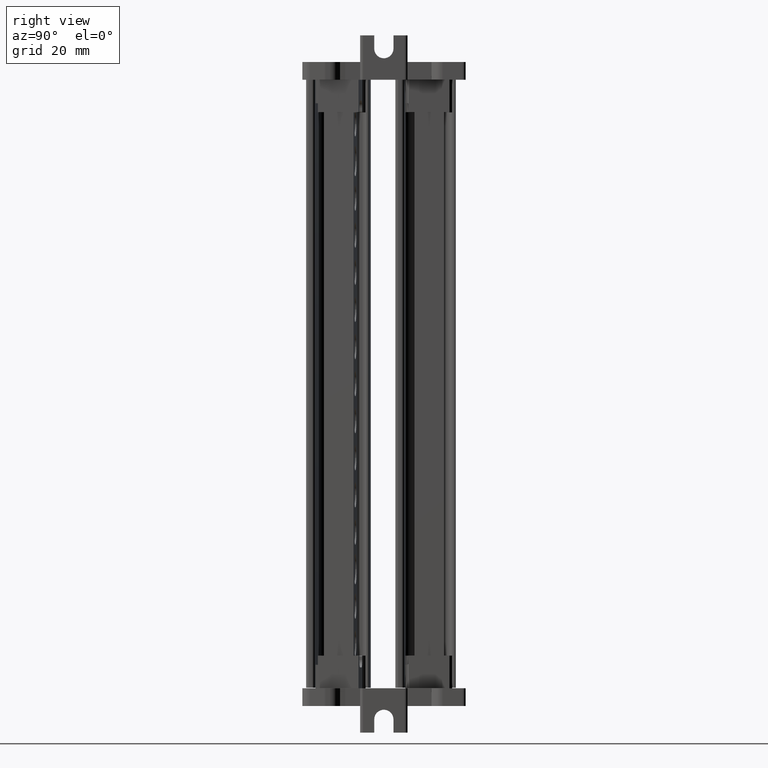
[diagram: clean part render]
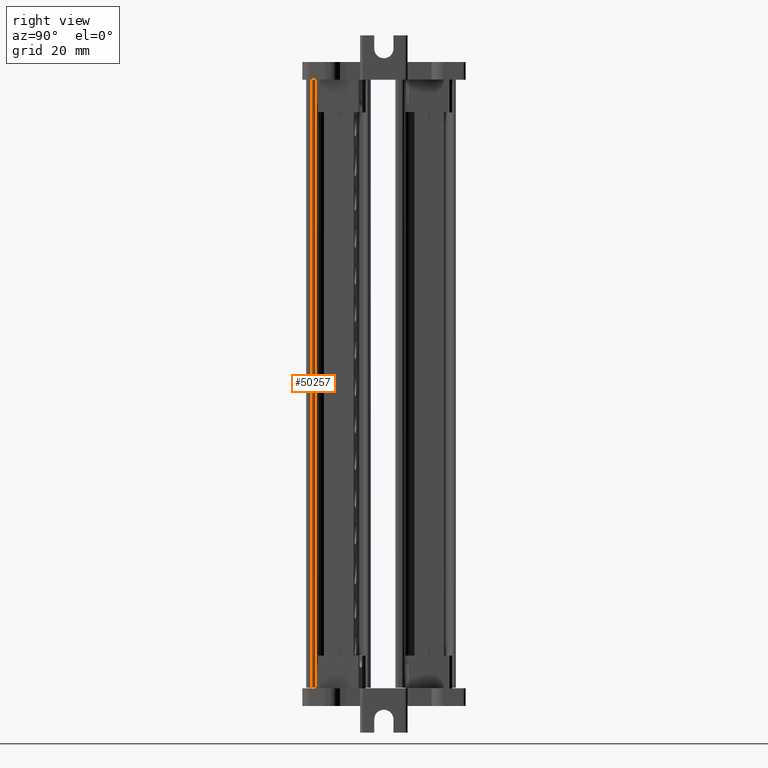
[diagram: same view with one face highlighted and labeled with its STEP entity id]
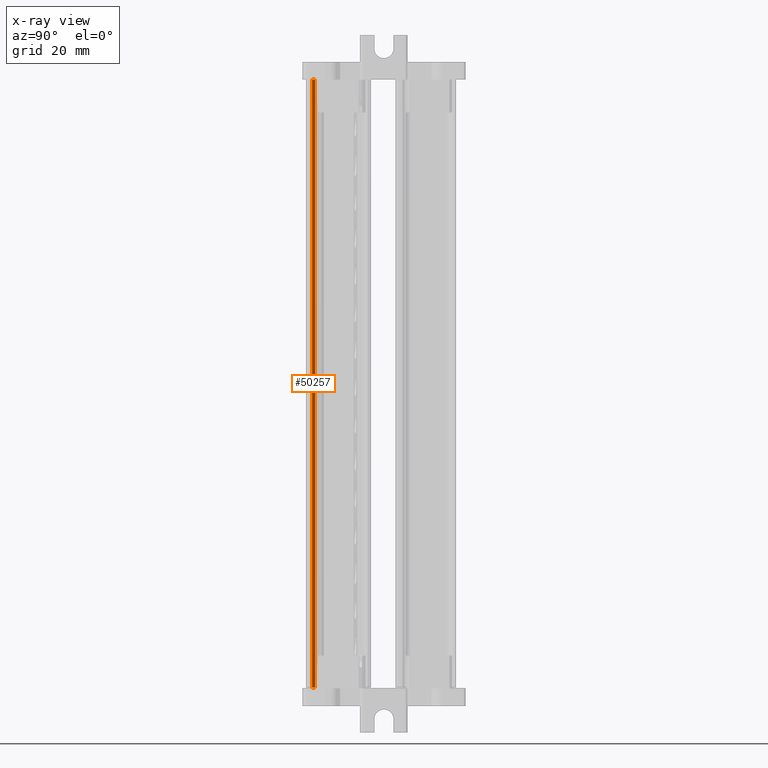
[diagram: x-ray of the same camera — body ghosted, the highlighted face saturated]
A machine part, right view. The second image highlights one B-rep face of the part: STEP entity #50257.
The next image is the same camera in x-ray: the body ghosted, the highlighted face saturated — about 0% of this face is hidden behind the body in this view.
In plain terms, the highlighted cylindrical surface (edge-blend (fillet) strip) has radius 1 mm, axis along (0, 0, -1).
Its self-contained STEP definition (entity closure, byte-faithful):
#1312 = DIRECTION ( 'NONE',  ( -1.263344702348293100E-010, -1.444603258241147500E-009, 1.000000000000000000 ) ) ;
#1327 = CARTESIAN_POINT ( 'NONE',  ( 1902.616250401497400, 759.6510122995540500, 6.170753986929261400 ) ) ;
#1351 = DIRECTION ( 'NONE',  ( 0.0000000000000000000, 1.000000000000000000, 1.444603117684016700E-009 ) ) ;
#26680 = DIRECTION ( 'NONE',  ( -1.515544296466684300E-010, -1.441952549265793800E-009, 1.000000000000000000 ) ) ;
#26728 = CARTESIAN_POINT ( 'NONE',  ( 1902.720778242178100, 760.6455341138628200, 106.6560282061103900 ) ) ;
#26740 = LINE ( 'NONE', #26728, #83209 ) ;
#26997 = DIRECTION ( 'NONE',  ( 0.0000000000000000000, 1.000000000000000000, 1.444594444066636800E-009 ) ) ;
#27062 = CARTESIAN_POINT ( 'NONE',  ( 1902.616250375617900, 759.6510120036276700, 211.0203037991499300 ) ) ;
#27065 = DIRECTION ( 'NONE',  ( 1.263344702348293100E-010, 1.444603258241147500E-009, -1.000000000000000000 ) ) ;
#31339 = FACE_OUTER_BOUND ( 'NONE', #45927, .T. ) ;
#31429 = DIRECTION ( 'NONE',  ( 0.0000000000000000000, 1.000000000000000000, 1.444608321854444600E-009 ) ) ;
#31432 = DIRECTION ( 'NONE',  ( 1.263344702348293100E-010, 1.444603258241147500E-009, -1.000000000000000000 ) ) ;
#31526 = CARTESIAN_POINT ( 'NONE',  ( 1902.616250388802700, 759.6510121543926700, 106.6560282043605700 ) ) ;
#31534 = CYLINDRICAL_SURFACE ( 'NONE', #64192, 1.000000000000000900 ) ;
#35247 = EDGE_CURVE ( 'NONE', #81180, #81186, #37258, .T. ) ;
#37254 = CARTESIAN_POINT ( 'NONE',  ( 1903.612445200531700, 759.5638577105332800, 106.6560282043605100 ) ) ;
#37255 = DIRECTION ( 'NONE',  ( 1.263344702348293100E-010, 1.444603258241147500E-009, -1.000000000000000000 ) ) ;
#37258 = LINE ( 'NONE', #37254, #57377 ) ;
#42088 = CARTESIAN_POINT ( 'NONE',  ( 1903.612445187346800, 759.5638575597685100, 211.0203037998748500 ) ) ;
#42111 = CARTESIAN_POINT ( 'NONE',  ( 1903.612445213226700, 759.5638578556945500, 6.170753986929199200 ) ) ;
#42635 = CARTESIAN_POINT ( 'NONE',  ( 1902.720778228944300, 760.6455339631031600, 211.0203038005998300 ) ) ;
#42724 = CARTESIAN_POINT ( 'NONE',  ( 1902.720778257406900, 760.6455342587579500, 6.170753986674961700 ) ) ;
#45927 = EDGE_LOOP ( 'NONE', ( #74853, #74804, #74813, #75002 ) ) ;
#50257 = ADVANCED_FACE ( 'NONE', ( #31339 ), #31534, .T. ) ;
#57377 = VECTOR ( 'NONE', #37255, 1000.000000000000000 ) ;
#64192 = AXIS2_PLACEMENT_3D ( 'NONE', #31526, #31432, #31429 ) ;
#74804 = ORIENTED_EDGE ( 'NONE', *, *, #35247, .T. ) ;
#74813 = ORIENTED_EDGE ( 'NONE', *, *, #77895, .T. ) ;
#74853 = ORIENTED_EDGE ( 'NONE', *, *, #78109, .T. ) ;
#75002 = ORIENTED_EDGE ( 'NONE', *, *, #78066, .T. ) ;
#77895 = EDGE_CURVE ( 'NONE', #81186, #81566, #83020, .T. ) ;
#78066 = EDGE_CURVE ( 'NONE', #81566, #81516, #26740, .T. ) ;
#78109 = EDGE_CURVE ( 'NONE', #81516, #81180, #83469, .T. ) ;
#81180 = VERTEX_POINT ( 'NONE', #42088 ) ;
#81186 = VERTEX_POINT ( 'NONE', #42111 ) ;
#81516 = VERTEX_POINT ( 'NONE', #42635 ) ;
#81566 = VERTEX_POINT ( 'NONE', #42724 ) ;
#83020 = CIRCLE ( 'NONE', #83087, 1.000000000000000900 ) ;
#83087 = AXIS2_PLACEMENT_3D ( 'NONE', #1327, #1312, #1351 ) ;
#83209 = VECTOR ( 'NONE', #26680, 1000.000000000000000 ) ;
#83420 = AXIS2_PLACEMENT_3D ( 'NONE', #27062, #27065, #26997 ) ;
#83469 = CIRCLE ( 'NONE', #83420, 1.000000000000000900 ) ;